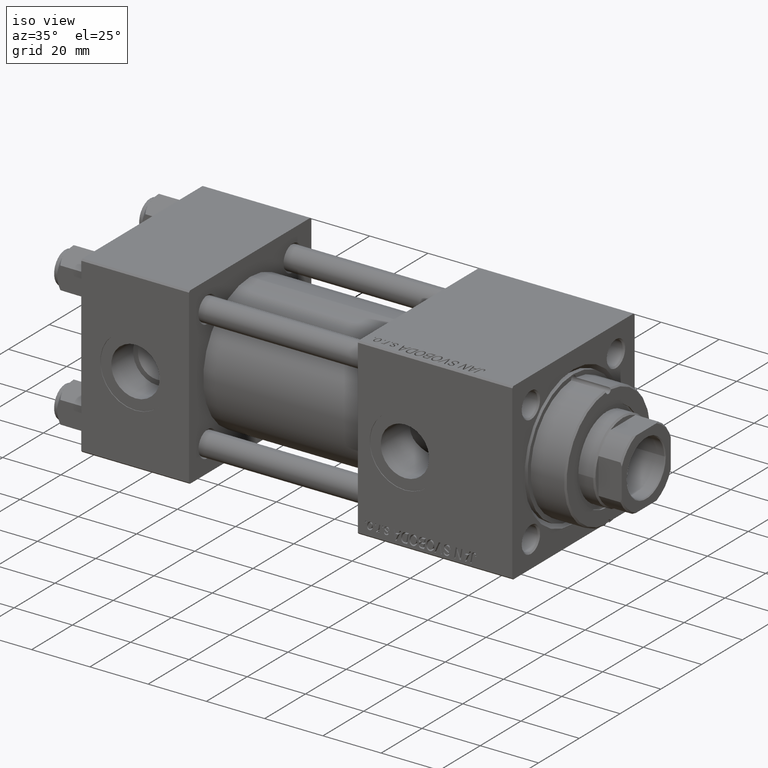
[diagram: clean part render]
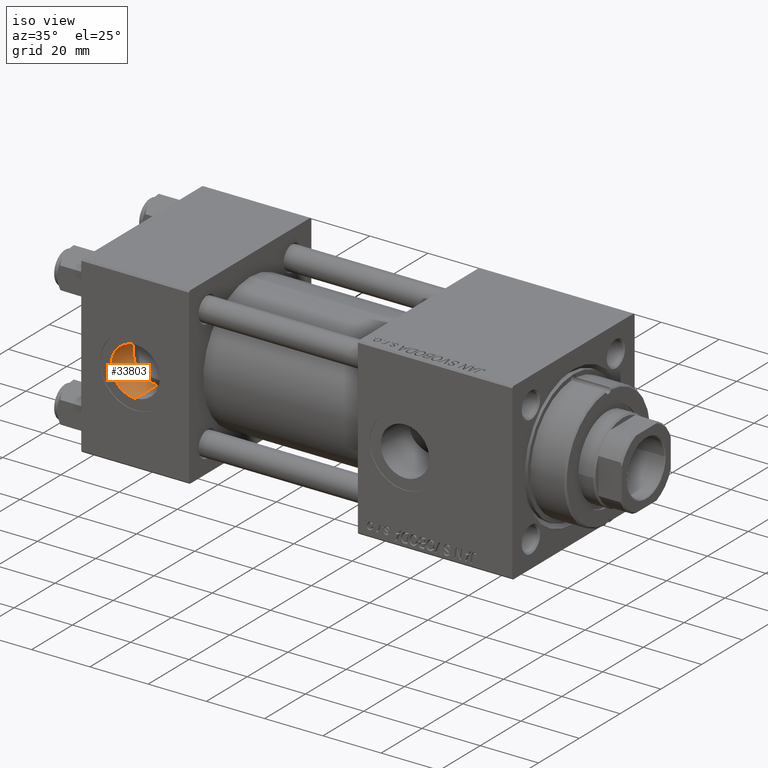
[diagram: same view with one face highlighted and labeled with its STEP entity id]
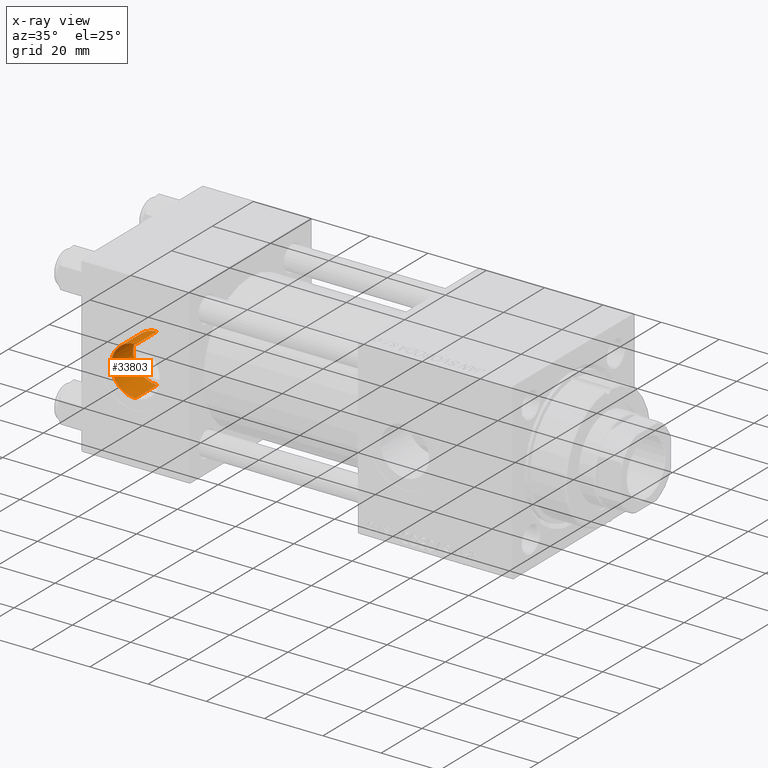
[diagram: x-ray of the same camera — body ghosted, the highlighted face saturated]
A machine part, iso view. The second image highlights one B-rep face of the part: STEP entity #33803.
The next image is the same camera in x-ray: the body ghosted, the highlighted face saturated — about 0% of this face is hidden behind the body in this view.
In plain terms, the highlighted cylindrical surface (edge-blend (fillet) strip) has radius 8.33 mm, axis along (-0, -1, -0).
Its self-contained STEP definition (entity closure, byte-faithful):
#1154 = CARTESIAN_POINT ( 'NONE',  ( 18.50000000000000000, -19.09999999999999787, 9.454242944073598665E-16 ) ) ;
#1313 = ORIENTED_EDGE ( 'NONE', *, *, #30167, .F. ) ;
#2379 = CARTESIAN_POINT ( 'NONE',  ( 18.50000000000000000, -19.09999999999999787, -8.330000000000000071 ) ) ;
#2585 = VERTEX_POINT ( 'NONE', #3862 ) ;
#3862 = CARTESIAN_POINT ( 'NONE',  ( 18.50000000000000000, -29.80000000000000071, -8.330000000000001847 ) ) ;
#10275 = LINE ( 'NONE', #47388, #34990 ) ;
#12386 = AXIS2_PLACEMENT_3D ( 'NONE', #1154, #20793, #33262 ) ;
#13674 = DIRECTION ( 'NONE',  ( 0.000000000000000000, 0.000000000000000000, -1.000000000000000000 ) ) ;
#13914 = AXIS2_PLACEMENT_3D ( 'NONE', #51218, #29728, #50164 ) ;
#13941 = EDGE_LOOP ( 'NONE', ( #1313, #36881, #48896, #25473 ) ) ;
#15074 = VECTOR ( 'NONE', #25780, 1000.000000000000000 ) ;
#17120 = DIRECTION ( 'NONE',  ( 0.000000000000000000, -1.000000000000000000, -8.673617379884036705E-17 ) ) ;
#20530 = FACE_OUTER_BOUND ( 'NONE', #13941, .T. ) ;
#20793 = DIRECTION ( 'NONE',  ( -0.000000000000000000, -1.000000000000000000, -8.673617379884036705E-17 ) ) ;
#21791 = LINE ( 'NONE', #37708, #15074 ) ;
#25473 = ORIENTED_EDGE ( 'NONE', *, *, #46802, .F. ) ;
#25780 = DIRECTION ( 'NONE',  ( -0.000000000000000000, -1.000000000000000000, -8.673617379884036705E-17 ) ) ;
#29416 = VERTEX_POINT ( 'NONE', #38272 ) ;
#29665 = VERTEX_POINT ( 'NONE', #2379 ) ;
#29728 = DIRECTION ( 'NONE',  ( 0.000000000000000000, -1.000000000000000000, -8.673617379884036705E-17 ) ) ;
#30018 = AXIS2_PLACEMENT_3D ( 'NONE', #41804, #17120, #13674 ) ;
#30167 = EDGE_CURVE ( 'NONE', #52164, #29665, #38503, .T. ) ;
#33262 = DIRECTION ( 'NONE',  ( 0.000000000000000000, 0.000000000000000000, -1.000000000000000000 ) ) ;
#33803 = ADVANCED_FACE ( 'NONE', ( #20530 ), #36712, .F. ) ;
#34990 = VECTOR ( 'NONE', #43160, 1000.000000000000000 ) ;
#36712 = CYLINDRICAL_SURFACE ( 'NONE', #12386, 8.330000000000001847 ) ;
#36763 = CIRCLE ( 'NONE', #13914, 8.330000000000001847 ) ;
#36881 = ORIENTED_EDGE ( 'NONE', *, *, #38008, .T. ) ;
#37708 = CARTESIAN_POINT ( 'NONE',  ( 18.50000000000000000, -19.09999999999999787, 8.330000000000003624 ) ) ;
#38008 = EDGE_CURVE ( 'NONE', #52164, #29416, #21791, .T. ) ;
#38272 = CARTESIAN_POINT ( 'NONE',  ( 18.50000000000000000, -29.80000000000000071, 8.330000000000001847 ) ) ;
#38503 = CIRCLE ( 'NONE', #30018, 8.330000000000001847 ) ;
#41804 = CARTESIAN_POINT ( 'NONE',  ( 18.50000000000000000, -19.09999999999999787, 9.454242944073598665E-16 ) ) ;
#43160 = DIRECTION ( 'NONE',  ( -0.000000000000000000, -1.000000000000000000, -8.673617379884036705E-17 ) ) ;
#46802 = EDGE_CURVE ( 'NONE', #29665, #2585, #10275, .T. ) ;
#47169 = CARTESIAN_POINT ( 'NONE',  ( 18.50000000000000000, -19.09999999999999787, 8.330000000000003624 ) ) ;
#47388 = CARTESIAN_POINT ( 'NONE',  ( 18.50000000000000000, -19.09999999999999787, -8.330000000000000071 ) ) ;
#48896 = ORIENTED_EDGE ( 'NONE', *, *, #49790, .T. ) ;
#49790 = EDGE_CURVE ( 'NONE', #29416, #2585, #36763, .T. ) ;
#50164 = DIRECTION ( 'NONE',  ( 0.000000000000000000, 0.000000000000000000, -1.000000000000000000 ) ) ;
#51218 = CARTESIAN_POINT ( 'NONE',  ( 18.50000000000000000, -29.80000000000000071, 1.734723475976808635E-17 ) ) ;
#52164 = VERTEX_POINT ( 'NONE', #47169 ) ;